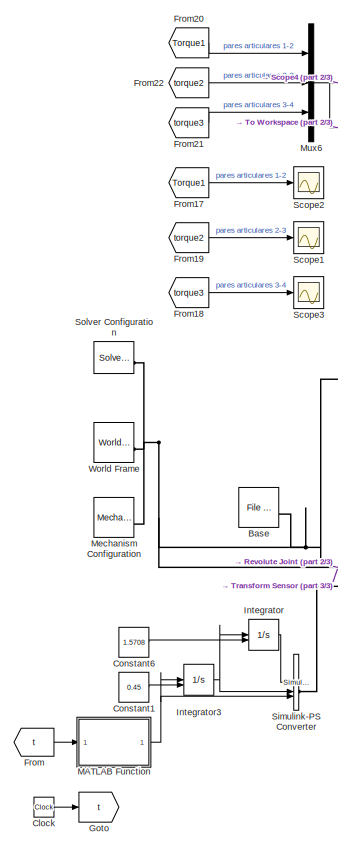
[diagram: root canvas - part 1/3, middle left region]
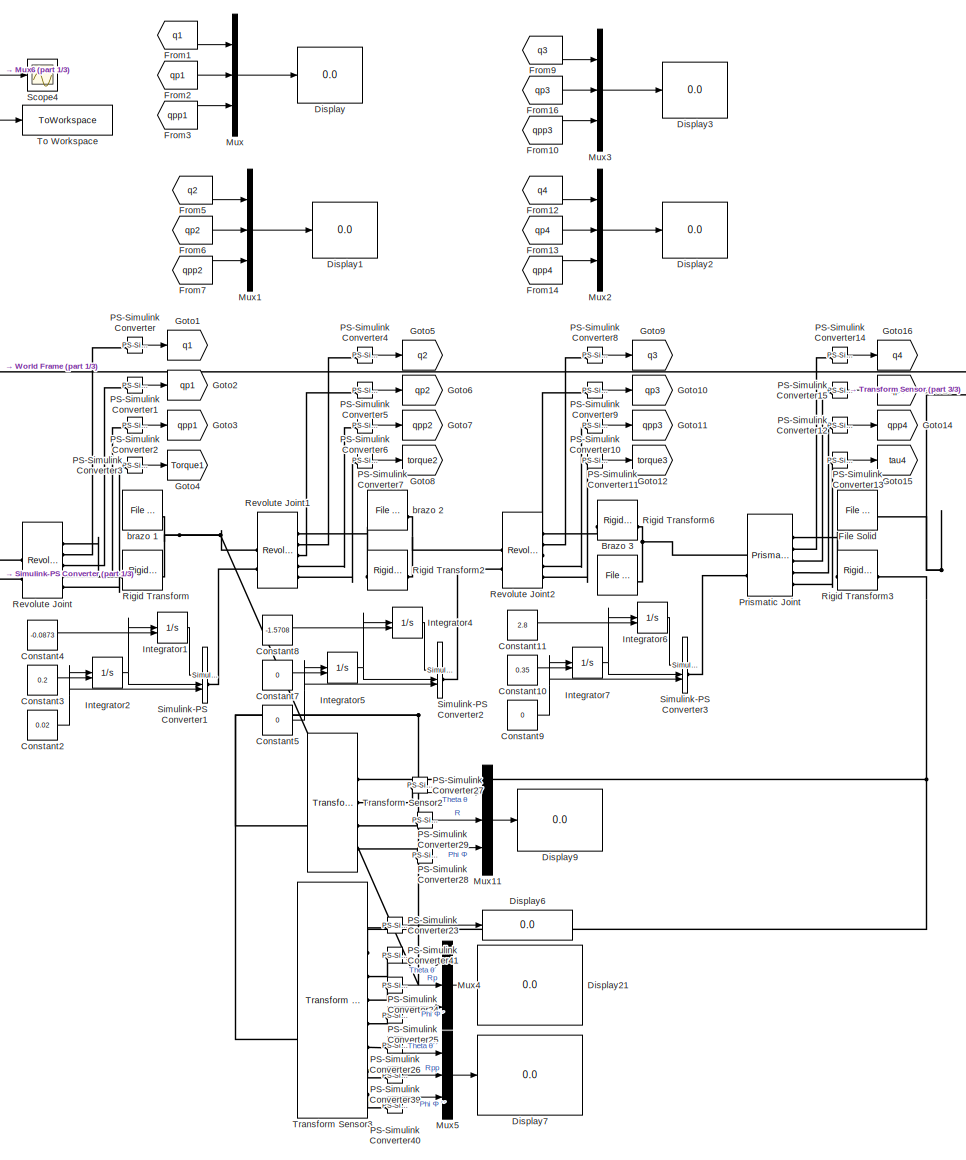
[diagram: root canvas - part 2/3, center side, full height]
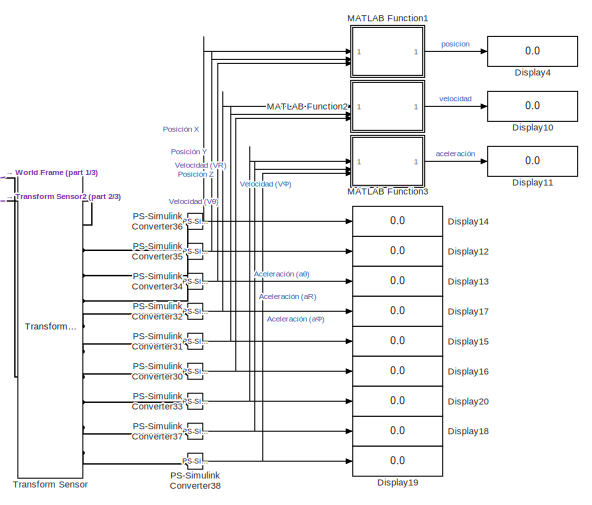
[diagram: root canvas - part 3/3, middle right region]
MODEL slx_55ad2359bdec
KIND model
CONFIG AbsTol = 1e-3
CONFIG EnableMultiTasking = on
CONFIG FixedStep = auto
CONFIG MaxStep = auto
CONFIG MinStep = auto
CONFIG RelTol = 1e-3
CONFIG SampleTimeConstraint = Unconstrained
CONFIG SolverName = VariableStepAuto
CONFIG StartTime = 0.0
CONFIG StopTime = 3
BLOCK [Reference] Base  REF=sm_lib/Body Elements/File Solid
  SourceBlock = sm_lib/Body Elements/File Solid
  SourceType = File Solid
BLOCK [Reference] Brazo 3  REF=sm_lib/Body Elements/File Solid
  SourceBlock = sm_lib/Body Elements/File Solid
  SourceType = File Solid
BLOCK [Clock] Clock
BLOCK [Constant] Constant1
  Value = 0.45
BLOCK [Constant] Constant10
  Value = 0.35
BLOCK [Constant] Constant11
  Value = 2.8
BLOCK [Constant] Constant2
  Value = 0.02
BLOCK [Constant] Constant3
  Value = 0.2
BLOCK [Constant] Constant4
  Value = -0.0873
BLOCK [Constant] Constant5
  Value = 0
BLOCK [Constant] Constant6
  Value = 1.5708
BLOCK [Constant] Constant7
  Value = 0
BLOCK [Constant] Constant8
  Value = -1.5708
BLOCK [Constant] Constant9
  Value = 0
BLOCK [Display] Display
  Decimation = 1
BLOCK [Display] Display1
  Decimation = 1
BLOCK [Display] Display10
  Decimation = 1
BLOCK [Display] Display11
  Decimation = 1
BLOCK [Display] Display12
  Decimation = 1
BLOCK [Display] Display13
  Decimation = 1
BLOCK [Display] Display14
  Decimation = 1
BLOCK [Display] Display15
  Decimation = 1
BLOCK [Display] Display16
  Decimation = 1
BLOCK [Display] Display17
  Decimation = 1
BLOCK [Display] Display18
  Decimation = 1
BLOCK [Display] Display19
  Decimation = 1
BLOCK [Display] Display2
  Decimation = 1
BLOCK [Display] Display20
  Decimation = 1
BLOCK [Display] Display21
  Decimation = 1
BLOCK [Display] Display3
  Decimation = 1
BLOCK [Display] Display4
  Decimation = 1
BLOCK [Display] Display6
  Decimation = 1
BLOCK [Display] Display7
  Decimation = 1
BLOCK [Display] Display9
  Decimation = 1
BLOCK [Reference] File Solid  REF=sm_lib/Body Elements/File Solid
  SourceBlock = sm_lib/Body Elements/File Solid
  SourceType = File Solid
BLOCK [From] From
  GotoTag = t
  TagVisibility = global
BLOCK [From] From1
  GotoTag = q1
  TagVisibility = global
BLOCK [From] From10
  GotoTag = qpp3
  TagVisibility = global
BLOCK [From] From12
  GotoTag = q4
  TagVisibility = global
BLOCK [From] From13
  GotoTag = qp4
  TagVisibility = global
BLOCK [From] From14
  GotoTag = qpp4
  TagVisibility = global
BLOCK [From] From16
  GotoTag = qp3
  TagVisibility = global
BLOCK [From] From17
  GotoTag = Torque1
  TagVisibility = global
BLOCK [From] From18
  GotoTag = torque3
  TagVisibility = global
BLOCK [From] From19
  GotoTag = torque2
  TagVisibility = global
BLOCK [From] From2
  GotoTag = qp1
  TagVisibility = global
BLOCK [From] From20
  GotoTag = Torque1
  TagVisibility = global
BLOCK [From] From21
  GotoTag = torque3
  TagVisibility = global
BLOCK [From] From22
  GotoTag = torque2
  TagVisibility = global
BLOCK [From] From3
  GotoTag = qpp1
  TagVisibility = global
BLOCK [From] From5
  GotoTag = q2
  TagVisibility = global
BLOCK [From] From6
  GotoTag = qp2
  TagVisibility = global
BLOCK [From] From7
  GotoTag = qpp2
  TagVisibility = global
BLOCK [From] From9
  GotoTag = q3
  TagVisibility = global
BLOCK [Goto] Goto
  GotoTag = t
  TagVisibility = global
BLOCK [Goto] Goto1
  GotoTag = q1
  TagVisibility = global
BLOCK [Goto] Goto10
  GotoTag = qp3
  TagVisibility = global
BLOCK [Goto] Goto11
  GotoTag = qpp3
  TagVisibility = global
BLOCK [Goto] Goto12
  GotoTag = torque3
  TagVisibility = global
BLOCK [Goto] Goto13
  GotoTag = qp4
  TagVisibility = global
BLOCK [Goto] Goto14
  GotoTag = qpp4
  TagVisibility = global
BLOCK [Goto] Goto15
  GotoTag = tau4
  TagVisibility = global
BLOCK [Goto] Goto16
  GotoTag = q4
  TagVisibility = global
BLOCK [Goto] Goto2
  GotoTag = qp1
  TagVisibility = global
BLOCK [Goto] Goto3
  GotoTag = qpp1
  TagVisibility = global
BLOCK [Goto] Goto4
  GotoTag = Torque1
  TagVisibility = global
BLOCK [Goto] Goto5
  GotoTag = q2
  TagVisibility = global
BLOCK [Goto] Goto6
  GotoTag = qp2
  TagVisibility = global
BLOCK [Goto] Goto7
  GotoTag = qpp2
  TagVisibility = global
BLOCK [Goto] Goto8
  GotoTag = torque2
  TagVisibility = global
BLOCK [Goto] Goto9
  GotoTag = q3
  TagVisibility = global
BLOCK [Integrator] Integrator
  InitialConditionSource = external
BLOCK [Integrator] Integrator1
  InitialConditionSource = external
BLOCK [Integrator] Integrator2
  InitialConditionSource = external
BLOCK [Integrator] Integrator3
  InitialConditionSource = external
BLOCK [Integrator] Integrator4
  InitialConditionSource = external
BLOCK [Integrator] Integrator5
  InitialConditionSource = external
BLOCK [Integrator] Integrator6
  InitialConditionSource = external
BLOCK [Integrator] Integrator7
  InitialConditionSource = external
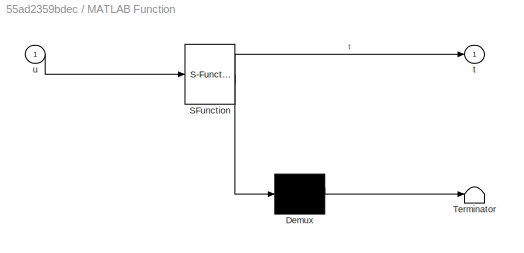
BLOCK [SubSystem] MATLAB Function
  ErrorFcn = Stateflow.Translate.translate
  LibrarySourceBlock = simulink/User-Defined\nFunctions/MATLAB Function
  PermitHierarchicalResolution = ExplicitOnly
  SFBlockType = MATLAB Function
  TreatAsAtomicUnit = on
BLOCK [Demux] MATLAB Function/ Demux 
  Outputs = 1
BLOCK [S-Function] MATLAB Function/ SFunction 
  EnableBusSupport = on
  FunctionName = sf_sfun
  PortCounts = [1 2]
  SFcnIsStateOwnerBlock = off
  SFunctionDeploymentMode = off
  Tag = Stateflow S-Function 2
BLOCK [Terminator] MATLAB Function/ Terminator 
BLOCK [Outport] MATLAB Function/t
BLOCK [Inport] MATLAB Function/u
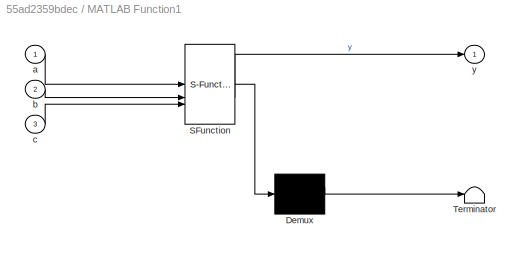
BLOCK [SubSystem] MATLAB Function1
  ErrorFcn = Stateflow.Translate.translate
  LibrarySourceBlock = simulink/User-Defined\nFunctions/MATLAB Function
  PermitHierarchicalResolution = ExplicitOnly
  SFBlockType = MATLAB Function
  TreatAsAtomicUnit = on
BLOCK [Demux] MATLAB Function1/ Demux 
  Outputs = 1
BLOCK [S-Function] MATLAB Function1/ SFunction 
  EnableBusSupport = on
  FunctionName = sf_sfun
  PortCounts = [3 2]
  SFcnIsStateOwnerBlock = off
  SFunctionDeploymentMode = off
  Tag = Stateflow S-Function 1
BLOCK [Terminator] MATLAB Function1/ Terminator 
BLOCK [Inport] MATLAB Function1/a
BLOCK [Inport] MATLAB Function1/b
  Port = 2
BLOCK [Inport] MATLAB Function1/c
  Port = 3
BLOCK [Outport] MATLAB Function1/y
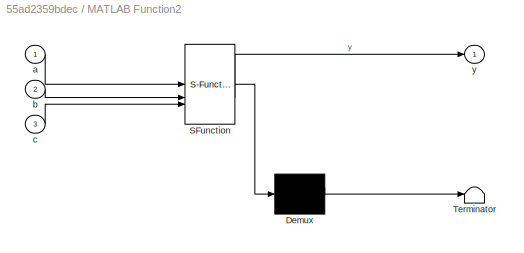
BLOCK [SubSystem] MATLAB Function2
  ErrorFcn = Stateflow.Translate.translate
  LibrarySourceBlock = simulink/User-Defined\nFunctions/MATLAB Function
  PermitHierarchicalResolution = ExplicitOnly
  SFBlockType = MATLAB Function
  TreatAsAtomicUnit = on
BLOCK [Demux] MATLAB Function2/ Demux 
  Outputs = 1
BLOCK [S-Function] MATLAB Function2/ SFunction 
  EnableBusSupport = on
  FunctionName = sf_sfun
  PortCounts = [3 2]
  SFcnIsStateOwnerBlock = off
  SFunctionDeploymentMode = off
  Tag = Stateflow S-Function 3
BLOCK [Terminator] MATLAB Function2/ Terminator 
BLOCK [Inport] MATLAB Function2/a
BLOCK [Inport] MATLAB Function2/b
  Port = 2
BLOCK [Inport] MATLAB Function2/c
  Port = 3
BLOCK [Outport] MATLAB Function2/y
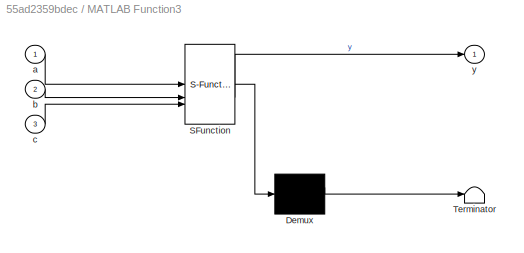
BLOCK [SubSystem] MATLAB Function3
  ErrorFcn = Stateflow.Translate.translate
  LibrarySourceBlock = simulink/User-Defined\nFunctions/MATLAB Function
  PermitHierarchicalResolution = ExplicitOnly
  SFBlockType = MATLAB Function
  TreatAsAtomicUnit = on
BLOCK [Demux] MATLAB Function3/ Demux 
  Outputs = 1
BLOCK [S-Function] MATLAB Function3/ SFunction 
  EnableBusSupport = on
  FunctionName = sf_sfun
  PortCounts = [3 2]
  SFcnIsStateOwnerBlock = off
  SFunctionDeploymentMode = off
  Tag = Stateflow S-Function 4
BLOCK [Terminator] MATLAB Function3/ Terminator 
BLOCK [Inport] MATLAB Function3/a
BLOCK [Inport] MATLAB Function3/b
  Port = 2
BLOCK [Inport] MATLAB Function3/c
  Port = 3
BLOCK [Outport] MATLAB Function3/y
BLOCK [Reference] Mechanism Configuration  REF=sm_lib/Utilities/Mechanism
Configuration
  SourceBlock = sm_lib/Utilities/Mechanism\nConfiguration
  SourceType = Mechanism\nConfiguration
BLOCK [Mux] Mux
  DisplayOption = bar
  Inputs = 3
BLOCK [Mux] Mux1
  DisplayOption = bar
  Inputs = 3
BLOCK [Mux] Mux11
  DisplayOption = bar
  Inputs = 3
BLOCK [Mux] Mux2
  DisplayOption = bar
  Inputs = 3
BLOCK [Mux] Mux3
  DisplayOption = bar
  Inputs = 3
BLOCK [Mux] Mux4
  DisplayOption = bar
  Inputs = 3
BLOCK [Mux] Mux5
  DisplayOption = bar
  Inputs = 3
BLOCK [Mux] Mux6
  DisplayOption = bar
  Inputs = 3
BLOCK [Reference] PS-Simulink Converter  REF=nesl_utility/PS-Simulink
Converter
  SourceBlock = nesl_utility/PS-Simulink\nConverter
  SourceType = PS-Simulink\nConverter
BLOCK [Reference] PS-Simulink Converter1  REF=nesl_utility/PS-Simulink
Converter
  SourceBlock = nesl_utility/PS-Simulink\nConverter
  SourceType = PS-Simulink\nConverter
BLOCK [Reference] PS-Simulink Converter10  REF=nesl_utility/PS-Simulink
Converter
  SourceBlock = nesl_utility/PS-Simulink\nConverter
  SourceType = PS-Simulink\nConverter
BLOCK [Reference] PS-Simulink Converter11  REF=nesl_utility/PS-Simulink
Converter
  SourceBlock = nesl_utility/PS-Simulink\nConverter
  SourceType = PS-Simulink\nConverter
BLOCK [Reference] PS-Simulink Converter12  REF=nesl_utility/PS-Simulink
Converter
  SourceBlock = nesl_utility/PS-Simulink\nConverter
  SourceType = PS-Simulink\nConverter
BLOCK [Reference] PS-Simulink Converter13  REF=nesl_utility/PS-Simulink
Converter
  SourceBlock = nesl_utility/PS-Simulink\nConverter
  SourceType = PS-Simulink\nConverter
BLOCK [Reference] PS-Simulink Converter14  REF=nesl_utility/PS-Simulink
Converter
  SourceBlock = nesl_utility/PS-Simulink\nConverter
  SourceType = PS-Simulink\nConverter
BLOCK [Reference] PS-Simulink Converter15  REF=nesl_utility/PS-Simulink
Converter
  SourceBlock = nesl_utility/PS-Simulink\nConverter
  SourceType = PS-Simulink\nConverter
BLOCK [Reference] PS-Simulink Converter2  REF=nesl_utility/PS-Simulink
Converter
  SourceBlock = nesl_utility/PS-Simulink\nConverter
  SourceType = PS-Simulink\nConverter
BLOCK [Reference] PS-Simulink Converter23  REF=nesl_utility/PS-Simulink
Converter
  SourceBlock = nesl_utility/PS-Simulink\nConverter
  SourceType = PS-Simulink\nConverter
BLOCK [Reference] PS-Simulink Converter24  REF=nesl_utility/PS-Simulink
Converter
  SourceBlock = nesl_utility/PS-Simulink\nConverter
  SourceType = PS-Simulink\nConverter
BLOCK [Reference] PS-Simulink Converter25  REF=nesl_utility/PS-Simulink
Converter
  SourceBlock = nesl_utility/PS-Simulink\nConverter
  SourceType = PS-Simulink\nConverter
BLOCK [Reference] PS-Simulink Converter26  REF=nesl_utility/PS-Simulink
Converter
  SourceBlock = nesl_utility/PS-Simulink\nConverter
  SourceType = PS-Simulink\nConverter
BLOCK [Reference] PS-Simulink Converter27  REF=nesl_utility/PS-Simulink
Converter
  SourceBlock = nesl_utility/PS-Simulink\nConverter
  SourceType = PS-Simulink\nConverter
BLOCK [Reference] PS-Simulink Converter28  REF=nesl_utility/PS-Simulink
Converter
  SourceBlock = nesl_utility/PS-Simulink\nConverter
  SourceType = PS-Simulink\nConverter
BLOCK [Reference] PS-Simulink Converter29  REF=nesl_utility/PS-Simulink
Converter
  SourceBlock = nesl_utility/PS-Simulink\nConverter
  SourceType = PS-Simulink\nConverter
BLOCK [Reference] PS-Simulink Converter3  REF=nesl_utility/PS-Simulink
Converter
  SourceBlock = nesl_utility/PS-Simulink\nConverter
  SourceType = PS-Simulink\nConverter
BLOCK [Reference] PS-Simulink Converter30  REF=nesl_utility/PS-Simulink
Converter
  SourceBlock = nesl_utility/PS-Simulink\nConverter
  SourceType = PS-Simulink\nConverter
BLOCK [Reference] PS-Simulink Converter31  REF=nesl_utility/PS-Simulink
Converter
  SourceBlock = nesl_utility/PS-Simulink\nConverter
  SourceType = PS-Simulink\nConverter
BLOCK [Reference] PS-Simulink Converter32  REF=nesl_utility/PS-Simulink
Converter
  SourceBlock = nesl_utility/PS-Simulink\nConverter
  SourceType = PS-Simulink\nConverter
BLOCK [Reference] PS-Simulink Converter33  REF=nesl_utility/PS-Simulink
Converter
  SourceBlock = nesl_utility/PS-Simulink\nConverter
  SourceType = PS-Simulink\nConverter
BLOCK [Reference] PS-Simulink Converter34  REF=nesl_utility/PS-Simulink
Converter
  SourceBlock = nesl_utility/PS-Simulink\nConverter
  SourceType = PS-Simulink\nConverter
BLOCK [Reference] PS-Simulink Converter35  REF=nesl_utility/PS-Simulink
Converter
  SourceBlock = nesl_utility/PS-Simulink\nConverter
  SourceType = PS-Simulink\nConverter
BLOCK [Reference] PS-Simulink Converter36  REF=nesl_utility/PS-Simulink
Converter
  SourceBlock = nesl_utility/PS-Simulink\nConverter
  SourceType = PS-Simulink\nConverter
BLOCK [Reference] PS-Simulink Converter37  REF=nesl_utility/PS-Simulink
Converter
  SourceBlock = nesl_utility/PS-Simulink\nConverter
  SourceType = PS-Simulink\nConverter
BLOCK [Reference] PS-Simulink Converter38  REF=nesl_utility/PS-Simulink
Converter
  SourceBlock = nesl_utility/PS-Simulink\nConverter
  SourceType = PS-Simulink\nConverter
BLOCK [Reference] PS-Simulink Converter39  REF=nesl_utility/PS-Simulink
Converter
  SourceBlock = nesl_utility/PS-Simulink\nConverter
  SourceType = PS-Simulink\nConverter
BLOCK [Reference] PS-Simulink Converter4  REF=nesl_utility/PS-Simulink
Converter
  SourceBlock = nesl_utility/PS-Simulink\nConverter
  SourceType = PS-Simulink\nConverter
BLOCK [Reference] PS-Simulink Converter40  REF=nesl_utility/PS-Simulink
Converter
  SourceBlock = nesl_utility/PS-Simulink\nConverter
  SourceType = PS-Simulink\nConverter
BLOCK [Reference] PS-Simulink Converter41  REF=nesl_utility/PS-Simulink
Converter
  SourceBlock = nesl_utility/PS-Simulink\nConverter
  SourceType = PS-Simulink\nConverter
BLOCK [Reference] PS-Simulink Converter5  REF=nesl_utility/PS-Simulink
Converter
  SourceBlock = nesl_utility/PS-Simulink\nConverter
  SourceType = PS-Simulink\nConverter
BLOCK [Reference] PS-Simulink Converter6  REF=nesl_utility/PS-Simulink
Converter
  SourceBlock = nesl_utility/PS-Simulink\nConverter
  SourceType = PS-Simulink\nConverter
BLOCK [Reference] PS-Simulink Converter7  REF=nesl_utility/PS-Simulink
Converter
  SourceBlock = nesl_utility/PS-Simulink\nConverter
  SourceType = PS-Simulink\nConverter
BLOCK [Reference] PS-Simulink Converter8  REF=nesl_utility/PS-Simulink
Converter
  SourceBlock = nesl_utility/PS-Simulink\nConverter
  SourceType = PS-Simulink\nConverter
BLOCK [Reference] PS-Simulink Converter9  REF=nesl_utility/PS-Simulink
Converter
  SourceBlock = nesl_utility/PS-Simulink\nConverter
  SourceType = PS-Simulink\nConverter
BLOCK [Reference] Prismatic Joint  REF=sm_lib/Joints/Prismatic
Joint
  SourceBlock = sm_lib/Joints/Prismatic\nJoint
  SourceType = Prismatic\nJoint
BLOCK [Reference] Revolute Joint  REF=sm_lib/Joints/Revolute Joint
  SourceBlock = sm_lib/Joints/Revolute Joint
  SourceType = Revolute Joint
BLOCK [Reference] Revolute Joint1  REF=sm_lib/Joints/Revolute Joint
  SourceBlock = sm_lib/Joints/Revolute Joint
  SourceType = Revolute Joint
BLOCK [Reference] Revolute Joint2  REF=sm_lib/Joints/Revolute Joint
  SourceBlock = sm_lib/Joints/Revolute Joint
  SourceType = Revolute Joint
BLOCK [Reference] Rigid Transform  REF=sm_lib/Frames and
Transforms/Rigid
Transform
  SourceBlock = sm_lib/Frames and\nTransforms/Rigid\nTransform
  SourceType = Rigid\nTransform
BLOCK [Reference] Rigid Transform2  REF=sm_lib/Frames and
Transforms/Rigid
Transform
  SourceBlock = sm_lib/Frames and\nTransforms/Rigid\nTransform
  SourceType = Rigid\nTransform
BLOCK [Reference] Rigid Transform3  REF=sm_lib/Frames and
Transforms/Rigid
Transform
  SourceBlock = sm_lib/Frames and\nTransforms/Rigid\nTransform
  SourceType = Rigid\nTransform
BLOCK [Reference] Rigid Transform6  REF=sm_lib/Frames and
Transforms/Rigid
Transform
  SourceBlock = sm_lib/Frames and\nTransforms/Rigid\nTransform
  SourceType = Rigid\nTransform
BLOCK [Scope] Scope1
  Floating = off
  NumInputPorts = 1
  ScopeSpecificationString = Simulink.scopes.TimeScopeBlockCfg('CurrentConfiguration', extmgr.ConfigurationSet(extmgr.Configuration('Core','General UI',true,'FigureColor',[0.831372549019608 0.815686274509804 0.784313725490196]),extmgr.Configuration('Core','Source UI',true),extmgr.Configuration('Sources','WiredSimulink',true),extmgr.Configuration('Visuals','Time Domain',true,'SerializedDisplays',{struct('MinYLimReal','45964.81...<+1599ch>
BLOCK [Scope] Scope2
  Floating = off
  NumInputPorts = 1
  ScopeSpecificationString = Simulink.scopes.TimeScopeBlockCfg('CurrentConfiguration', extmgr.ConfigurationSet(extmgr.Configuration('Core','General UI',true,'FigureColor',[0.831372549019608 0.815686274509804 0.784313725490196]),extmgr.Configuration('Core','Source UI',true),extmgr.Configuration('Sources','WiredSimulink',true,'DataLoggingVariableName','ScopeData2'),extmgr.Configuration('Visuals','Time Domain',true,'SerializedDi...<+1631ch>
BLOCK [Scope] Scope3
  Floating = off
  NumInputPorts = 1
  ScopeSpecificationString = Simulink.scopes.TimeScopeBlockCfg('CurrentConfiguration', extmgr.ConfigurationSet(extmgr.Configuration('Core','General UI',true,'FigureColor',[0.831372549019608 0.815686274509804 0.784313725490196]),extmgr.Configuration('Core','Source UI',true),extmgr.Configuration('Sources','WiredSimulink',true,'DataLoggingVariableName','ScopeData1'),extmgr.Configuration('Visuals','Time Domain',true,'SerializedDi...<+1634ch>
BLOCK [Scope] Scope4
  Floating = off
  NumInputPorts = 1
  ScopeSpecificationString = Simulink.scopes.TimeScopeBlockCfg('CurrentConfiguration', extmgr.ConfigurationSet(extmgr.Configuration('Core','General UI',true,'FigureColor',[0.831372549019608 0.815686274509804 0.784313725490196]),extmgr.Configuration('Core','Source UI',true),extmgr.Configuration('Sources','WiredSimulink',true,'DataLoggingVariableName','ScopeData3'),extmgr.Configuration('Visuals','Time Domain',true,'SerializedDi...<+1649ch>
BLOCK [Reference] Simulink-PS Converter  REF=nesl_utility/Simulink-PS
Converter
  SourceBlock = nesl_utility/Simulink-PS\nConverter
  SourceType = Simulink-PS\nConverter
BLOCK [Reference] Simulink-PS Converter1  REF=nesl_utility/Simulink-PS
Converter
  SourceBlock = nesl_utility/Simulink-PS\nConverter
  SourceType = Simulink-PS\nConverter
BLOCK [Reference] Simulink-PS Converter2  REF=nesl_utility/Simulink-PS
Converter
  SourceBlock = nesl_utility/Simulink-PS\nConverter
  SourceType = Simulink-PS\nConverter
BLOCK [Reference] Simulink-PS Converter3  REF=nesl_utility/Simulink-PS
Converter
  SourceBlock = nesl_utility/Simulink-PS\nConverter
  SourceType = Simulink-PS\nConverter
BLOCK [Reference] Solver Configuration  REF=nesl_utility/Solver
Configuration
  SourceBlock = nesl_utility/Solver\nConfiguration
  SourceType = Solver\nConfiguration
BLOCK [ToWorkspace] To Workspace
  FixptAsFi = on
  MaxDataPoints = inf
  SampleTime = -1
  SaveFormat = Timeseries
  VariableName = torque
BLOCK [Reference] Transform Sensor  REF=sm_lib/Frames and
Transforms/Transform
Sensor
  SourceBlock = sm_lib/Frames and\nTransforms/Transform\nSensor
  SourceType = Transform\nSensor
BLOCK [Reference] Transform Sensor2  REF=sm_lib/Frames and
Transforms/Transform
Sensor
  SourceBlock = sm_lib/Frames and\nTransforms/Transform\nSensor
  SourceType = Transform\nSensor
BLOCK [Reference] Transform Sensor3  REF=sm_lib/Frames and
Transforms/Transform
Sensor
  SourceBlock = sm_lib/Frames and\nTransforms/Transform\nSensor
  SourceType = Transform\nSensor
BLOCK [Reference] World Frame  REF=sm_lib/Frames and
Transforms/World Frame
  SourceBlock = sm_lib/Frames and\nTransforms/World Frame
  SourceType = World Frame
BLOCK [Reference] brazo 1  REF=sm_lib/Body Elements/File Solid
  SourceBlock = sm_lib/Body Elements/File Solid
  SourceType = File Solid
BLOCK [Reference] brazo 2  REF=sm_lib/Body Elements/File Solid
  SourceBlock = sm_lib/Body Elements/File Solid
  SourceType = File Solid
LINE Clock:1 -> Goto:1
LINE Constant10:1 -> Integrator7:2
LINE Constant11:1 -> Integrator6:2
LINE Constant1:1 -> Integrator3:2
NET Constant2:1 -> Integrator2:1, Simulink-PS Converter1:3
LINE Constant3:1 -> Integrator2:2
LINE Constant4:1 -> Integrator1:2
NET Constant5:1 -> Integrator5:1, Simulink-PS Converter2:3
LINE Constant6:1 -> Integrator:2
LINE Constant7:1 -> Integrator5:2
LINE Constant8:1 -> Integrator4:2
NET Constant9:1 -> Integrator7:1, Simulink-PS Converter3:3
LINE From10:1 -> Mux3:3
LINE From12:1 -> Mux2:1
LINE From13:1 -> Mux2:2
LINE From14:1 -> Mux2:3
LINE From16:1 -> Mux3:2
LINE From17:1 -> Scope2:1
LINE From18:1 -> Scope3:1
LINE From19:1 -> Scope1:1
LINE From1:1 -> Mux:1
LINE From20:1 -> Mux6:1
LINE From21:1 -> Mux6:3
LINE From22:1 -> Mux6:2
LINE From2:1 -> Mux:2
LINE From3:1 -> Mux:3
LINE From5:1 -> Mux1:1
LINE From6:1 -> Mux1:2
LINE From7:1 -> Mux1:3
LINE From9:1 -> Mux3:1
LINE From:1 -> MATLAB Function:1
LINE Integrator1:1 -> Simulink-PS Converter1:1
NET Integrator2:1 -> Integrator1:1, Simulink-PS Converter1:2
NET Integrator3:1 -> Integrator:1, Simulink-PS Converter:2
LINE Integrator4:1 -> Simulink-PS Converter2:1
NET Integrator5:1 -> Integrator4:1, Simulink-PS Converter2:2
LINE Integrator6:1 -> Simulink-PS Converter3:1
NET Integrator7:1 -> Integrator6:1, Simulink-PS Converter3:2
LINE Integrator:1 -> Simulink-PS Converter:1
LINE MATLAB Function1:1 -> Display4:1
LINE MATLAB Function2:1 -> Display10:1
LINE MATLAB Function3:1 -> Display11:1
NET MATLAB Function:1 -> Integrator3:1, Simulink-PS Converter:3
LINE Mux11:1 -> Display9:1
LINE Mux1:1 -> Display1:1
LINE Mux2:1 -> Display2:1
LINE Mux3:1 -> Display3:1
LINE Mux4:1 -> Display21:1
LINE Mux5:1 -> Display7:1
NET Mux6:1 -> Scope4:1, To Workspace:1
LINE Mux:1 -> Display:1
LINE PS-Simulink Converter10:1 -> Goto11:1
LINE PS-Simulink Converter11:1 -> Goto12:1
LINE PS-Simulink Converter12:1 -> Goto14:1
LINE PS-Simulink Converter13:1 -> Goto15:1
LINE PS-Simulink Converter14:1 -> Goto16:1
LINE PS-Simulink Converter15:1 -> Goto13:1
LINE PS-Simulink Converter1:1 -> Goto2:1
LINE PS-Simulink Converter23:1 -> Display6:1
LINE PS-Simulink Converter24:1 -> Mux4:2
LINE PS-Simulink Converter25:1 -> Mux4:3
LINE PS-Simulink Converter26:1 -> Mux5:1
LINE PS-Simulink Converter27:1 -> Mux11:1
LINE PS-Simulink Converter28:1 -> Mux11:3
LINE PS-Simulink Converter29:1 -> Mux11:2
LINE PS-Simulink Converter2:1 -> Goto3:1
NET PS-Simulink Converter30:1 -> Display16:1, MATLAB Function2:3
NET PS-Simulink Converter31:1 -> Display15:1, MATLAB Function2:2
NET PS-Simulink Converter32:1 -> Display17:1, MATLAB Function2:1
NET PS-Simulink Converter33:1 -> Display20:1, MATLAB Function3:1
NET PS-Simulink Converter34:1 -> Display13:1, MATLAB Function1:3
NET PS-Simulink Converter35:1 -> Display12:1, MATLAB Function1:2
NET PS-Simulink Converter36:1 -> Display14:1, MATLAB Function1:1
NET PS-Simulink Converter37:1 -> Display18:1, MATLAB Function3:2
NET PS-Simulink Converter38:1 -> Display19:1, MATLAB Function3:3
LINE PS-Simulink Converter39:1 -> Mux5:2
LINE PS-Simulink Converter3:1 -> Goto4:1
LINE PS-Simulink Converter40:1 -> Mux5:3
LINE PS-Simulink Converter41:1 -> Mux4:1
LINE PS-Simulink Converter4:1 -> Goto5:1
LINE PS-Simulink Converter5:1 -> Goto6:1
LINE PS-Simulink Converter6:1 -> Goto7:1
LINE PS-Simulink Converter7:1 -> Goto8:1
LINE PS-Simulink Converter8:1 -> Goto9:1
LINE PS-Simulink Converter9:1 -> Goto10:1
LINE PS-Simulink Converter:1 -> Goto1:1
PNET net1: Base:RConn1 -- Mechanism Configuration:RConn1 -- Revolute Joint:LConn1 -- Solver Configuration:RConn1 -- Transform Sensor:LConn1 -- World Frame:RConn1
PNET net2: Brazo 3:RConn1 -- Prismatic Joint:LConn1 -- Rigid Transform6:RConn1
PNET net3: File Solid:RConn1 -- Rigid Transform3:RConn1 -- Transform Sensor2:RConn1 -- Transform Sensor3:RConn1 -- Transform Sensor:RConn1
PLINE PS-Simulink Converter10:LConn1 -- Revolute Joint2:RConn4
PLINE PS-Simulink Converter11:LConn1 -- Revolute Joint2:RConn5
PLINE PS-Simulink Converter12:LConn1 -- Prismatic Joint:RConn4
PLINE PS-Simulink Converter13:LConn1 -- Prismatic Joint:RConn5
PLINE PS-Simulink Converter14:LConn1 -- Prismatic Joint:RConn2
PLINE PS-Simulink Converter15:LConn1 -- Prismatic Joint:RConn3
PLINE PS-Simulink Converter1:LConn1 -- Revolute Joint:RConn3
PLINE PS-Simulink Converter23:LConn1 -- Transform Sensor3:RConn2
PLINE PS-Simulink Converter24:LConn1 -- Transform Sensor3:RConn4
PLINE PS-Simulink Converter25:LConn1 -- Transform Sensor3:RConn5
PLINE PS-Simulink Converter26:LConn1 -- Transform Sensor3:RConn6
PLINE PS-Simulink Converter27:LConn1 -- Transform Sensor2:RConn2
PLINE PS-Simulink Converter28:LConn1 -- Transform Sensor2:RConn4
PLINE PS-Simulink Converter29:LConn1 -- Transform Sensor2:RConn3
PLINE PS-Simulink Converter2:LConn1 -- Revolute Joint:RConn4
PLINE PS-Simulink Converter30:LConn1 -- Transform Sensor:RConn7
PLINE PS-Simulink Converter31:LConn1 -- Transform Sensor:RConn6
PLINE PS-Simulink Converter32:LConn1 -- Transform Sensor:RConn5
PLINE PS-Simulink Converter33:LConn1 -- Transform Sensor:RConn8
PLINE PS-Simulink Converter34:LConn1 -- Transform Sensor:RConn4
PLINE PS-Simulink Converter35:LConn1 -- Transform Sensor:RConn3
PLINE PS-Simulink Converter36:LConn1 -- Transform Sensor:RConn2
PLINE PS-Simulink Converter37:LConn1 -- Transform Sensor:RConn9
PLINE PS-Simulink Converter38:LConn1 -- Transform Sensor:RConn10
PLINE PS-Simulink Converter39:LConn1 -- Transform Sensor3:RConn7
PLINE PS-Simulink Converter3:LConn1 -- Revolute Joint:RConn5
PLINE PS-Simulink Converter40:LConn1 -- Transform Sensor3:RConn8
PLINE PS-Simulink Converter41:LConn1 -- Transform Sensor3:RConn3
PLINE PS-Simulink Converter4:LConn1 -- Revolute Joint1:RConn2
PLINE PS-Simulink Converter5:LConn1 -- Revolute Joint1:RConn3
PLINE PS-Simulink Converter6:LConn1 -- Revolute Joint1:RConn4
PLINE PS-Simulink Converter7:LConn1 -- Revolute Joint1:RConn5
PLINE PS-Simulink Converter8:LConn1 -- Revolute Joint2:RConn2
PLINE PS-Simulink Converter9:LConn1 -- Revolute Joint2:RConn3
PLINE PS-Simulink Converter:LConn1 -- Revolute Joint:RConn2
PLINE Prismatic Joint:LConn2 -- Simulink-PS Converter3:RConn1
PLINE Prismatic Joint:RConn1 -- Rigid Transform3:LConn1
PNET net4: Revolute Joint1:LConn1 -- Rigid Transform:RConn1 -- Transform Sensor2:LConn1 -- Transform Sensor3:LConn1 -- brazo 1:RConn1
PLINE Revolute Joint1:LConn2 -- Simulink-PS Converter1:RConn1
PLINE Revolute Joint1:RConn1 -- Rigid Transform2:LConn1
PNET net5: Revolute Joint2:LConn1 -- Rigid Transform2:RConn1 -- brazo 2:RConn1
PLINE Revolute Joint2:LConn2 -- Simulink-PS Converter2:RConn1
PLINE Revolute Joint2:RConn1 -- Rigid Transform6:LConn1
PLINE Revolute Joint:LConn2 -- Simulink-PS Converter:RConn1
PLINE Revolute Joint:RConn1 -- Rigid Transform:LConn1
note: NET lines group one-source signal fan-out (src -> all destinations, sorted); 1:1 wires keep LINE; PNET lines group multi-terminal physical nets as a canonical sorted terminal list (undirected conserving connections); 2-terminal nets keep the pairwise PLINE form
CHART MATLAB Function states=1 transitions=1
  STATE_LABEL 'eML_blk_kernel()'
  STATE_LABEL 'SCRIPT:\nfunction t = fcn(u)\n\nt = 0.005*u;\n'
CHART MATLAB Function2 states=1 transitions=1
  STATE_LABEL 'eML_blk_kernel()'
  STATE_LABEL 'SCRIPT:\nfunction y = fcn(a,b,c)\n\n\ny = sqrt((a^2)+(b^2)+(c^2));\n'
CHART MATLAB Function3 states=1 transitions=1
  STATE_LABEL 'eML_blk_kernel()'
  STATE_LABEL 'SCRIPT:\nfunction y = fcn(a,b,c)\n\n\ny = sqrt((a^2)+(b^2)+(c^2));\n'
CHART MATLAB Function1 states=1 transitions=1
  STATE_LABEL 'eML_blk_kernel()'
  STATE_LABEL 'SCRIPT:\nfunction y = fcn(a,b,c)\n\n\ny = sqrt((a^2)+(b^2)+(c^2));\n'
CHART  states=0 transitions=0
CHART  states=0 transitions=0
CHART  states=0 transitions=0
CHART  states=0 transitions=0
